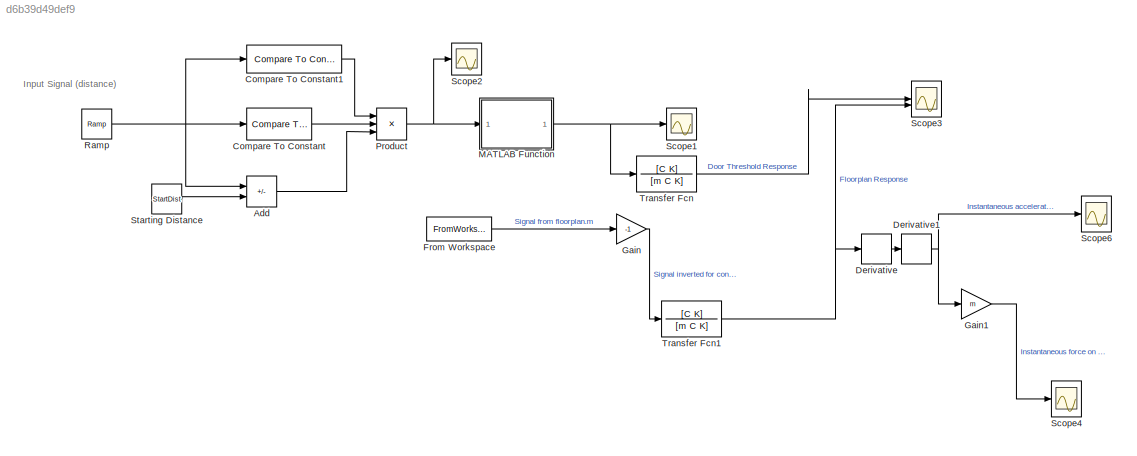
MODEL slx_d6b39d49def9
KIND model
CONFIG AbsTol = auto
CONFIG EnableMultiTasking = off
CONFIG FixedStep = 0.00001
CONFIG MaxStep = auto
CONFIG MinStep = auto
CONFIG RelTol = 1e-3
CONFIG SampleTimeConstraint = Unconstrained
CONFIG SolverName = ode4
CONFIG StartTime = 0.0
CONFIG StopTime = 2
WORKSPACE source: mxarray member
WORKSPACE C = 50
WORKSPACE K = 75
WORKSPACE StartDist = 0.2
WORKSPACE V = 3
WORKSPACE m = 10
BLOCK [Sum] Add
  IconShape = rectangular
  Inputs = +-
BLOCK [Reference] Compare To Constant  REF=simulink/Logic and Bit
Operations/Compare
To Constant
  SourceBlock = simulink/Logic and Bit\nOperations/Compare\nTo Constant
  SourceType = Compare To Constant
BLOCK [Reference] Compare To Constant1  REF=simulink/Logic and Bit
Operations/Compare
To Constant
  SourceBlock = simulink/Logic and Bit\nOperations/Compare\nTo Constant
  SourceType = Compare To Constant
BLOCK [Derivative] Derivative
BLOCK [Derivative] Derivative1
BLOCK [FromWorkspace] From Workspace
  OutputAfterFinalValue = Holding final value
  VariableName = z_signal
BLOCK [Gain] Gain
  Gain = -1
BLOCK [Gain] Gain1
  Gain = m
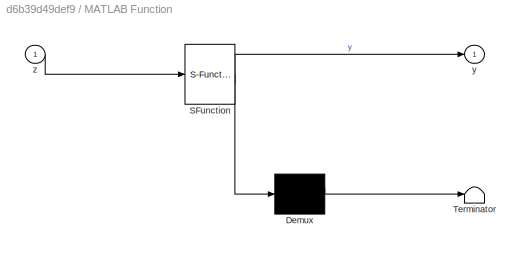
BLOCK [SubSystem] MATLAB Function
  ErrorFcn = Stateflow.Translate.translate
  PermitHierarchicalResolution = ExplicitOnly
  SFBlockType = MATLAB Function
  TreatAsAtomicUnit = on
BLOCK [Demux] MATLAB Function/ Demux 
  Outputs = 1
BLOCK [S-Function] MATLAB Function/ SFunction 
  EnableBusSupport = off
  FunctionName = sf_sfun
  PortCounts = [1 2]
  SFcnIsStateOwnerBlock = off
  SFunctionDeploymentMode = off
  Tag = Stateflow S-Function 2
BLOCK [Terminator] MATLAB Function/ Terminator 
BLOCK [Outport] MATLAB Function/y
BLOCK [Inport] MATLAB Function/z
BLOCK [Product] Product
  Inputs = 3
BLOCK [Reference] Ramp  REF=simulink/Sources/Ramp
  SourceBlock = simulink/Sources/Ramp
  SourceType = Ramp
BLOCK [Scope] Scope1
  ActiveDisplayYMaximum = 0.075321611313754436
  ActiveDisplayYMinimum = -0.016249587732509282
  Floating = off
  GraphicalSettings = {"Style":{"BackgroundColor":[0.12941176470588237,0.12941176470588237,0.12941176470588237],"AxesColor":[0.07058823529411765,0.07058823529411765,0.07058823529411765],"LabelsColor":[0.8509803921568627,0.8509803921568627,0.8509803921568627],"PreserveColors":false,"Visible":[true],"LineStyle":["-"],"LineWidth":[1.5],"BarWidth":[0.9],"LineColor":["auto"],"LineFaceAlpha":[1],"LineEdgeAlpha":[1],"Marker":...<+2006ch>
  MultipleDisplayCache = [{"MaxYLimMag":0.0562499999999998,"MaxYLimReal":0.075321611313754436,"MinYLimMag":0,"MinYLimReal":-0.016249587732509282,"PlotAsMagnitudePhase":false,"ShowGrid":true,"ShowLegend":false,"Title":"%<SignalLabel>","YLabel":""}]
  NumInputPorts = 1
  ScopeFrameLocation = window
  WasSavedAsWebScope = on
  WindowPosition = [685.000000,390.000000,560.000000,420.000000,]
BLOCK [Scope] Scope2
  ActiveDisplayYMaximum = 0.08436808195041462
  ActiveDisplayYMinimum = -0.012589931548242353
  DataLoggingVariableName = ScopeData2
  Floating = off
  GraphicalSettings = {"Style":{"BackgroundColor":[0.12941176470588237,0.12941176470588237,0.12941176470588237],"AxesColor":[0.07058823529411765,0.07058823529411765,0.07058823529411765],"LabelsColor":[0.8509803921568627,0.8509803921568627,0.8509803921568627],"PreserveColors":false,"Visible":[true],"LineStyle":["-"],"LineWidth":[1.5],"BarWidth":[0.9],"LineColor":["auto"],"LineFaceAlpha":[1],"LineEdgeAlpha":[1],"Marker":...<+1998ch>
  MultipleDisplayCache = [{"MaxYLimMag":0.0562499999999998,"MaxYLimReal":0.08436808195041462,"MinYLimMag":0,"MinYLimReal":-0.012589931548242353,"PlotAsMagnitudePhase":false,"ShowGrid":true,"ShowLegend":false,"Title":"%<SignalLabel>","YLabel":""}]
  NumInputPorts = 1
  ScopeFrameLocation = window
  WasSavedAsWebScope = on
  WindowPosition = [120.000000,390.000000,560.000000,420.000000,]
BLOCK [Scope] Scope3
  ActiveDisplayYMaximum = 0.0039217521977168617
  ActiveDisplayYMinimum = -0.00057159990857951414
  DataLoggingVariableName = ScopeData3
  Floating = off
  GraphicalSettings = {"Style":{"BackgroundColor":[0.12941176470588237,0.12941176470588237,0.12941176470588237],"AxesColor":[0.07058823529411765,0.07058823529411765,0.07058823529411765],"LabelsColor":[0.8509803921568627,0.8509803921568627,0.8509803921568627],"PreserveColors":false,"Visible":[true,true],"LineStyle":["-","-"],"LineWidth":[1.5,1.5],"BarWidth":[0.9,0.9],"LineColor":["auto","auto"],"LineFaceAlpha":[1,1],"Li...<+2228ch>
  MultipleDisplayCache = [{"MaxYLimMag":0.0039217521977168617,"MaxYLimReal":0.0039217521977168617,"MinYLimMag":0,"MinYLimReal":-0.00057159990857951414,"PlotAsMagnitudePhase":false,"ShowGrid":true,"ShowLegend":true,"Title":"%<SignalLabel>","YLabel":"Vertical Displacement (m)"}]
  NumInputPorts = 2
  ScopeFrameLocation = window
  ShowLegend = on
  ShowTimeAxisLabel = on
  WasSavedAsWebScope = on
  WindowPosition = [0.000000,35.000000,1440.000000,830.000000,]
  YLabel = Vertical Displacement (m)
BLOCK [Scope] Scope4
  ActiveDisplayYMaximum = 237.18455251948188
  ActiveDisplayYMinimum = 235.01472924843719
  DataLoggingVariableName = ScopeData1
  Floating = off
  GraphicalSettings = {"AxesScalingProperties":{"AlignXAxis":"Center","AlignYAxis":"Center","AutoScaleXAxisLimits":false,"AxesScaling":"Manual","AxesScalingNumUpdates":10,"ExpandOnly":true,"ScaleAxesLimitsAtStop":false,"XAxisDataRange":100,"YAxisDataRange":80},"DisplayProperties":{"ColorOrder":["auto","auto","auto","auto","auto","auto","auto","auto","auto","auto","auto","auto","auto","auto","auto","auto","auto","auto",...<+2122ch>
  MultipleDisplayCache = [{"MaxYLimMag":294.94143614299946,"MaxYLimReal":237.18455251948188,"MinYLimMag":0,"MinYLimReal":235.01472924843719,"PlotAsMagnitudePhase":false,"ShowGrid":true,"ShowLegend":true,"Title":"%<SignalLabel>","YLabel":"Vertical Displacement (m)"}]
  NumInputPorts = 1
  ScopeFrameLocation = window
  ShowLegend = on
  ShowTimeAxisLabel = on
  WasSavedAsWebScope = on
  WindowPosition = [0.000000,35.000000,1440.000000,830.000000,]
  YLabel = Vertical Displacement (m)
BLOCK [Scope] Scope6
  ActiveDisplayYMaximum = 29.494143614299947
  ActiveDisplayYMinimum = -29.408075777336176
  DataLoggingVariableName = ScopeData5
  Floating = off
  GraphicalSettings = {"Style":{"BackgroundColor":[0.12941176470588237,0.12941176470588237,0.12941176470588237],"AxesColor":[0.07058823529411765,0.07058823529411765,0.07058823529411765],"LabelsColor":[0.8509803921568627,0.8509803921568627,0.8509803921568627],"PreserveColors":false,"Visible":[true],"LineStyle":["-"],"LineWidth":[1.5],"BarWidth":[0.9],"LineColor":["auto"],"LineFaceAlpha":[1],"LineEdgeAlpha":[1],"Marker":...<+2109ch>
  MultipleDisplayCache = [{"MaxYLimMag":29.494143614299947,"MaxYLimReal":29.494143614299947,"MinYLimMag":0,"MinYLimReal":-29.408075777336176,"PlotAsMagnitudePhase":false,"ShowGrid":true,"ShowLegend":true,"Title":"%<SignalLabel>","YLabel":"Vertical Displacement (m)"}]
  NumInputPorts = 1
  ScopeFrameLocation = window
  ShowLegend = on
  ShowTimeAxisLabel = on
  WasSavedAsWebScope = on
  WindowPosition = [0.000000,35.000000,1440.000000,830.000000,]
  YLabel = Vertical Displacement (m)
BLOCK [Constant] Starting Distance
  Value = StartDist
BLOCK [TransferFcn] Transfer Fcn
  Denominator = [m C K]
  Numerator = [C K]
BLOCK [TransferFcn] Transfer Fcn1
  Denominator = [m C K]
  Numerator = [C K]
ANNOTATION (root): Input Signal (distance)
LINE Add:1 -> Product:3
LINE Compare To Constant1:1 -> Product:1
LINE Compare To Constant:1 -> Product:2
NET Derivative1:1 -> Gain1:1, Scope6:1
LINE Derivative:1 -> Derivative1:1
LINE From Workspace:1 -> Gain:1
LINE Gain1:1 -> Scope4:1
LINE Gain:1 -> Transfer Fcn1:1
NET MATLAB Function:1 -> Scope1:1, Transfer Fcn:1
NET Product:1 -> MATLAB Function:1, Scope2:1
NET Ramp:1 -> Add:1, Compare To Constant1:1, Compare To Constant:1
LINE Starting Distance:1 -> Add:2
NET Transfer Fcn1:1 -> Derivative:1, Scope3:2
LINE Transfer Fcn:1 -> Scope3:1
note: NET lines group one-source signal fan-out (src -> all destinations, sorted); 1:1 wires keep LINE
CHART MATLAB Function states=1 transitions=1
  STATE_LABEL 'eML_blk_kernel()'
  STATE_LABEL 'SCRIPT:\nfunction y = fcn(z)\n    y = 0.03 * sin(pi * z / 0.05)^2;\nend'
CHART  states=0 transitions=0
